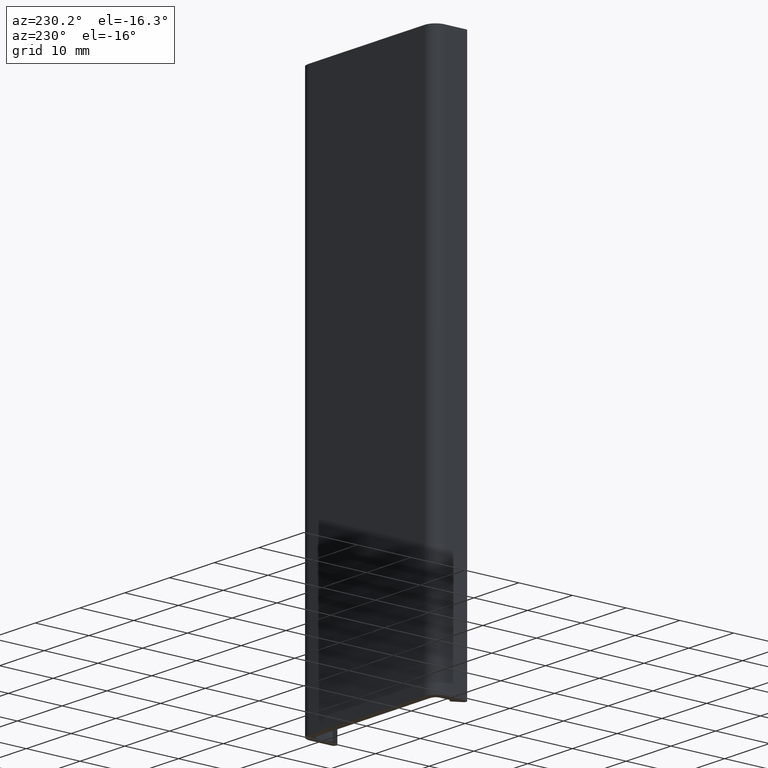
[diagram: clean part render]
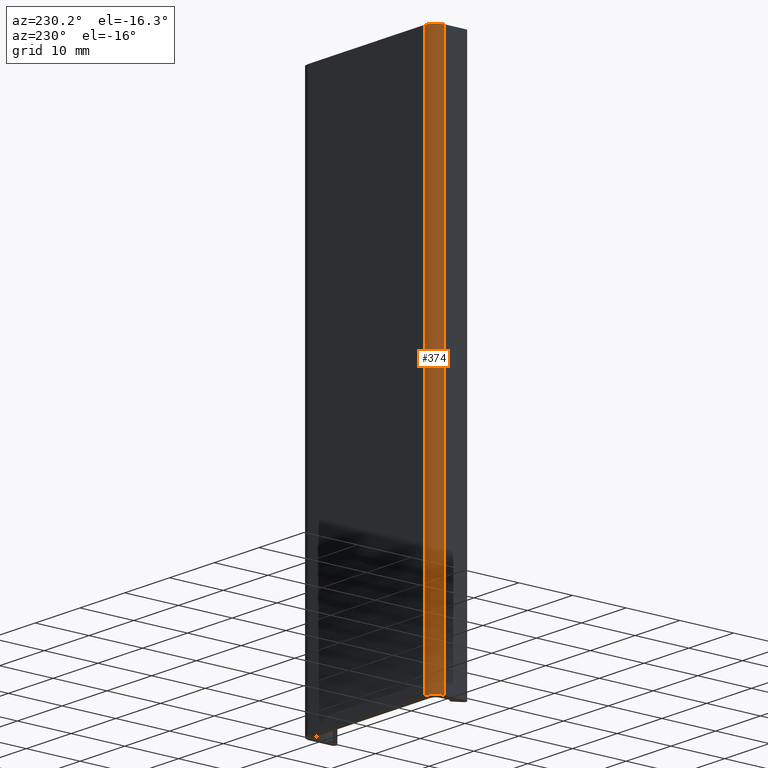
[diagram: same view with one face highlighted and labeled with its STEP entity id]
A machine part, auxiliary view. The second image highlights one B-rep face of the part: STEP entity #374.
In plain terms, the highlighted cylindrical surface (edge-blend (fillet) strip) has radius 2 mm, axis along (0, 0, 1).
Its self-contained STEP definition (entity closure, byte-faithful):
#23=CIRCLE('',#405,2.00000000000017);
#24=CIRCLE('',#406,2.00000000000017);
#35=CYLINDRICAL_SURFACE('',#404,2.00000000000017);
#48=FACE_OUTER_BOUND('',#68,.T.);
#68=EDGE_LOOP('',(#281,#282,#283,#284));
#99=LINE('',#598,#137);
#100=LINE('',#601,#138);
#137=VECTOR('',#483,100.);
#138=VECTOR('',#486,100.);
#175=VERTEX_POINT('',#594);
#176=VERTEX_POINT('',#595);
#177=VERTEX_POINT('',#597);
#178=VERTEX_POINT('',#599);
#219=EDGE_CURVE('',#175,#176,#23,.T.);
#220=EDGE_CURVE('',#175,#177,#99,.T.);
#221=EDGE_CURVE('',#178,#177,#24,.T.);
#222=EDGE_CURVE('',#178,#176,#100,.T.);
#281=ORIENTED_EDGE('',*,*,#219,.F.);
#282=ORIENTED_EDGE('',*,*,#220,.T.);
#283=ORIENTED_EDGE('',*,*,#221,.F.);
#284=ORIENTED_EDGE('',*,*,#222,.T.);
#374=ADVANCED_FACE('',(#48),#35,.T.);
#404=AXIS2_PLACEMENT_3D('',#593,#479,#480);
#405=AXIS2_PLACEMENT_3D('',#596,#481,#482);
#406=AXIS2_PLACEMENT_3D('',#600,#484,#485);
#479=DIRECTION('center_axis',(0.,0.,1.));
#480=DIRECTION('ref_axis',(0.,-1.,0.));
#481=DIRECTION('center_axis',(0.,0.,1.));
#482=DIRECTION('ref_axis',(0.,-1.,0.));
#483=DIRECTION('',(0.,0.,-1.));
#484=DIRECTION('center_axis',(0.,0.,-1.));
#485=DIRECTION('ref_axis',(0.,-1.,0.));
#486=DIRECTION('',(0.,0.,1.));
#593=CARTESIAN_POINT('Origin',(-12.9999999999991,-2.00000000000017,0.));
#594=CARTESIAN_POINT('',(-12.9999999999991,0.,100.));
#595=CARTESIAN_POINT('',(-14.9999999999993,-2.00000000000017,100.));
#596=CARTESIAN_POINT('Origin',(-12.9999999999991,-2.00000000000017,100.));
#597=CARTESIAN_POINT('',(-12.9999999999991,0.,0.));
#598=CARTESIAN_POINT('',(-12.9999999999991,-1.11022302462516E-15,0.));
#599=CARTESIAN_POINT('',(-14.9999999999993,-2.00000000000017,0.));
#600=CARTESIAN_POINT('Origin',(-12.9999999999991,-2.00000000000017,0.));
#601=CARTESIAN_POINT('',(-14.9999999999993,-2.00000000000017,0.));